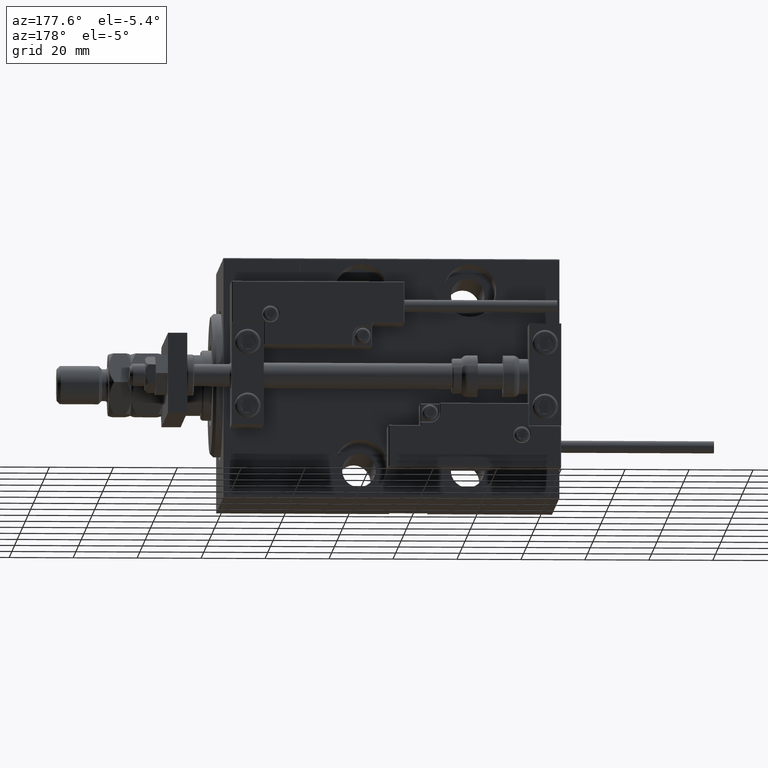
[diagram: clean part render]
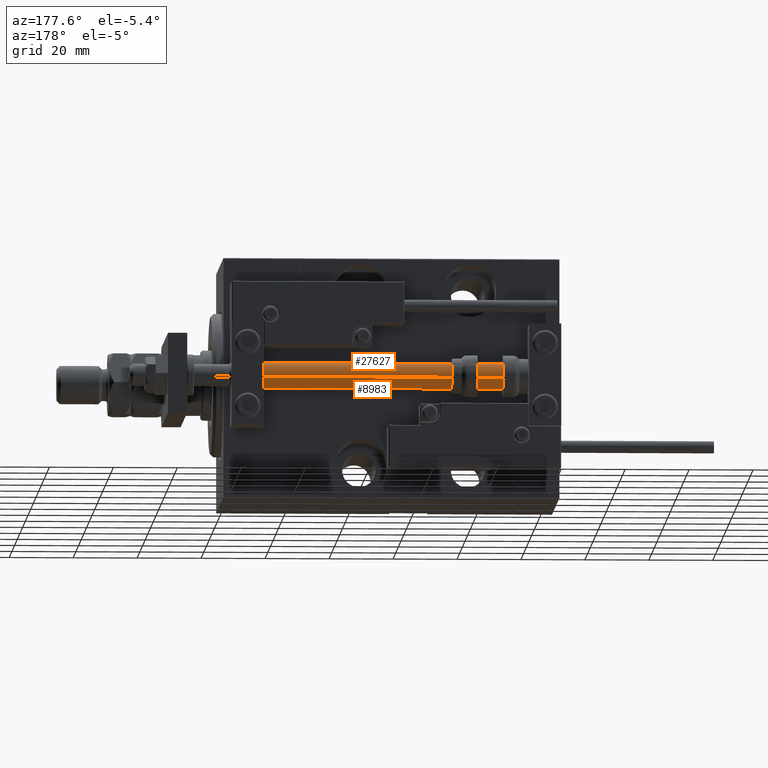
[diagram: same view with one multi-face feature highlighted, each face labeled with its STEP entity id]
A machine part, auxiliary view. The highlighted faces form ONE feature: a constant-radius fillet chain: 2 tangent blend faces with common blend radius 4 mm. The faces share edges in the B-rep.
Their STEP definitions:
[1] entity #27627 (Cylinder):
#1188 = CARTESIAN_POINT ( 'NONE',  ( 4.000000000000000000, 4.898587196589412829E-16, 105.0000000000000000 ) ) ;
#3221 = CARTESIAN_POINT ( 'NONE',  ( -4.000000000000000000, 0.000000000000000000, 2.000000000000029310 ) ) ;
#4932 = CARTESIAN_POINT ( 'NONE',  ( 4.000000000000000000, 4.898587196589412829E-16, 2.000000000000029310 ) ) ;
#10087 = ORIENTED_EDGE ( 'NONE', *, *, #14986, .F. ) ;
#10095 = ORIENTED_EDGE ( 'NONE', *, *, #17951, .F. ) ;
#10424 = VERTEX_POINT ( 'NONE', #1188 ) ;
#13760 = DIRECTION ( 'NONE',  ( -1.000000000000000000, 0.000000000000000000, 0.000000000000000000 ) ) ;
#14986 = EDGE_CURVE ( 'NONE', #10424, #29733, #34376, .T. ) ;
#16023 = ORIENTED_EDGE ( 'NONE', *, *, #43512, .T. ) ;
#17951 = EDGE_CURVE ( 'NONE', #44079, #10424, #25344, .T. ) ;
#19482 = CARTESIAN_POINT ( 'NONE',  ( -4.000000000000000000, 0.000000000000000000, 105.0000000000000000 ) ) ;
#20183 = LINE ( 'NONE', #40063, #49329 ) ;
#20400 = AXIS2_PLACEMENT_3D ( 'NONE', #37875, #30011, #26874 ) ;
#21470 = EDGE_LOOP ( 'NONE', ( #10087, #10095, #22184, #16023 ) ) ;
#22184 = ORIENTED_EDGE ( 'NONE', *, *, #25687, .T. ) ;
#25344 = CIRCLE ( 'NONE', #20400, 4.000000000000000000 ) ;
#25687 = EDGE_CURVE ( 'NONE', #44079, #49130, #20183, .T. ) ;
#26381 = CARTESIAN_POINT ( 'NONE',  ( 0.000000000000000000, 0.000000000000000000, 2.000000000000029310 ) ) ;
#26874 = DIRECTION ( 'NONE',  ( 1.000000000000000000, 0.000000000000000000, 0.000000000000000000 ) ) ;
#27627 = ADVANCED_FACE ( 'NONE', ( #43880 ), #45417, .T. ) ;
#29733 = VERTEX_POINT ( 'NONE', #4932 ) ;
#30011 = DIRECTION ( 'NONE',  ( 0.000000000000000000, 0.000000000000000000, 1.000000000000000000 ) ) ;
#31669 = DIRECTION ( 'NONE',  ( -0.000000000000000000, -0.000000000000000000, -1.000000000000000000 ) ) ;
#33139 = CIRCLE ( 'NONE', #41529, 4.000000000000000000 ) ;
#34376 = LINE ( 'NONE', #39080, #51447 ) ;
#37875 = CARTESIAN_POINT ( 'NONE',  ( 0.000000000000000000, 0.000000000000000000, 105.0000000000000000 ) ) ;
#38421 = DIRECTION ( 'NONE',  ( 1.000000000000000000, 0.000000000000000000, 0.000000000000000000 ) ) ;
#39080 = CARTESIAN_POINT ( 'NONE',  ( 4.000000000000000000, 4.898587196589412829E-16, 105.0000000000000000 ) ) ;
#40063 = CARTESIAN_POINT ( 'NONE',  ( -4.000000000000000000, 0.000000000000000000, 105.0000000000000000 ) ) ;
#41235 = DIRECTION ( 'NONE',  ( -0.000000000000000000, -0.000000000000000000, -1.000000000000000000 ) ) ;
#41529 = AXIS2_PLACEMENT_3D ( 'NONE', #26381, #42361, #38421 ) ;
#42361 = DIRECTION ( 'NONE',  ( -0.000000000000000000, -0.000000000000000000, 1.000000000000000000 ) ) ;
#43512 = EDGE_CURVE ( 'NONE', #49130, #29733, #33139, .T. ) ;
#43880 = FACE_OUTER_BOUND ( 'NONE', #21470, .T. ) ;
#44079 = VERTEX_POINT ( 'NONE', #19482 ) ;
#45417 = CYLINDRICAL_SURFACE ( 'NONE', #48595, 4.000000000000000000 ) ;
#46678 = DIRECTION ( 'NONE',  ( -0.000000000000000000, -0.000000000000000000, -1.000000000000000000 ) ) ;
#48595 = AXIS2_PLACEMENT_3D ( 'NONE', #49333, #41235, #13760 ) ;
#49130 = VERTEX_POINT ( 'NONE', #3221 ) ;
#49329 = VECTOR ( 'NONE', #31669, 1000.000000000000000 ) ;
#49333 = CARTESIAN_POINT ( 'NONE',  ( 0.000000000000000000, 0.000000000000000000, 105.0000000000000000 ) ) ;
#51447 = VECTOR ( 'NONE', #46678, 1000.000000000000000 ) ;
[2] entity #8983 (Cylinder):
#1188 = CARTESIAN_POINT ( 'NONE',  ( 4.000000000000000000, 4.898587196589412829E-16, 105.0000000000000000 ) ) ;
#3221 = CARTESIAN_POINT ( 'NONE',  ( -4.000000000000000000, 0.000000000000000000, 2.000000000000029310 ) ) ;
#3918 = DIRECTION ( 'NONE',  ( -1.000000000000000000, 0.000000000000000000, 0.000000000000000000 ) ) ;
#4932 = CARTESIAN_POINT ( 'NONE',  ( 4.000000000000000000, 4.898587196589412829E-16, 2.000000000000029310 ) ) ;
#6714 = DIRECTION ( 'NONE',  ( 1.000000000000000000, 0.000000000000000000, 0.000000000000000000 ) ) ;
#6835 = AXIS2_PLACEMENT_3D ( 'NONE', #50634, #35191, #6714 ) ;
#7071 = CARTESIAN_POINT ( 'NONE',  ( 0.000000000000000000, 0.000000000000000000, 105.0000000000000000 ) ) ;
#7592 = DIRECTION ( 'NONE',  ( -0.000000000000000000, -0.000000000000000000, -1.000000000000000000 ) ) ;
#8983 = ADVANCED_FACE ( 'NONE', ( #43922 ), #23275, .T. ) ;
#10424 = VERTEX_POINT ( 'NONE', #1188 ) ;
#12869 = ORIENTED_EDGE ( 'NONE', *, *, #27875, .T. ) ;
#14986 = EDGE_CURVE ( 'NONE', #10424, #29733, #34376, .T. ) ;
#15659 = DIRECTION ( 'NONE',  ( 1.000000000000000000, 0.000000000000000000, 0.000000000000000000 ) ) ;
#16504 = ORIENTED_EDGE ( 'NONE', *, *, #50464, .F. ) ;
#17569 = EDGE_LOOP ( 'NONE', ( #16504, #40978, #12869, #39091 ) ) ;
#19098 = CIRCLE ( 'NONE', #34123, 4.000000000000000000 ) ;
#19482 = CARTESIAN_POINT ( 'NONE',  ( -4.000000000000000000, 0.000000000000000000, 105.0000000000000000 ) ) ;
#20183 = LINE ( 'NONE', #40063, #49329 ) ;
#21752 = AXIS2_PLACEMENT_3D ( 'NONE', #7071, #7592, #3918 ) ;
#23275 = CYLINDRICAL_SURFACE ( 'NONE', #21752, 4.000000000000000000 ) ;
#25687 = EDGE_CURVE ( 'NONE', #44079, #49130, #20183, .T. ) ;
#27875 = EDGE_CURVE ( 'NONE', #29733, #49130, #30202, .T. ) ;
#29733 = VERTEX_POINT ( 'NONE', #4932 ) ;
#30202 = CIRCLE ( 'NONE', #6835, 4.000000000000000000 ) ;
#31669 = DIRECTION ( 'NONE',  ( -0.000000000000000000, -0.000000000000000000, -1.000000000000000000 ) ) ;
#34123 = AXIS2_PLACEMENT_3D ( 'NONE', #40240, #51489, #15659 ) ;
#34376 = LINE ( 'NONE', #39080, #51447 ) ;
#35191 = DIRECTION ( 'NONE',  ( -0.000000000000000000, -0.000000000000000000, 1.000000000000000000 ) ) ;
#39080 = CARTESIAN_POINT ( 'NONE',  ( 4.000000000000000000, 4.898587196589412829E-16, 105.0000000000000000 ) ) ;
#39091 = ORIENTED_EDGE ( 'NONE', *, *, #25687, .F. ) ;
#40063 = CARTESIAN_POINT ( 'NONE',  ( -4.000000000000000000, 0.000000000000000000, 105.0000000000000000 ) ) ;
#40240 = CARTESIAN_POINT ( 'NONE',  ( 0.000000000000000000, 0.000000000000000000, 105.0000000000000000 ) ) ;
#40978 = ORIENTED_EDGE ( 'NONE', *, *, #14986, .T. ) ;
#43922 = FACE_OUTER_BOUND ( 'NONE', #17569, .T. ) ;
#44079 = VERTEX_POINT ( 'NONE', #19482 ) ;
#46678 = DIRECTION ( 'NONE',  ( -0.000000000000000000, -0.000000000000000000, -1.000000000000000000 ) ) ;
#49130 = VERTEX_POINT ( 'NONE', #3221 ) ;
#49329 = VECTOR ( 'NONE', #31669, 1000.000000000000000 ) ;
#50464 = EDGE_CURVE ( 'NONE', #10424, #44079, #19098, .T. ) ;
#50634 = CARTESIAN_POINT ( 'NONE',  ( 0.000000000000000000, 0.000000000000000000, 2.000000000000029310 ) ) ;
#51447 = VECTOR ( 'NONE', #46678, 1000.000000000000000 ) ;
#51489 = DIRECTION ( 'NONE',  ( 0.000000000000000000, 0.000000000000000000, 1.000000000000000000 ) ) ;